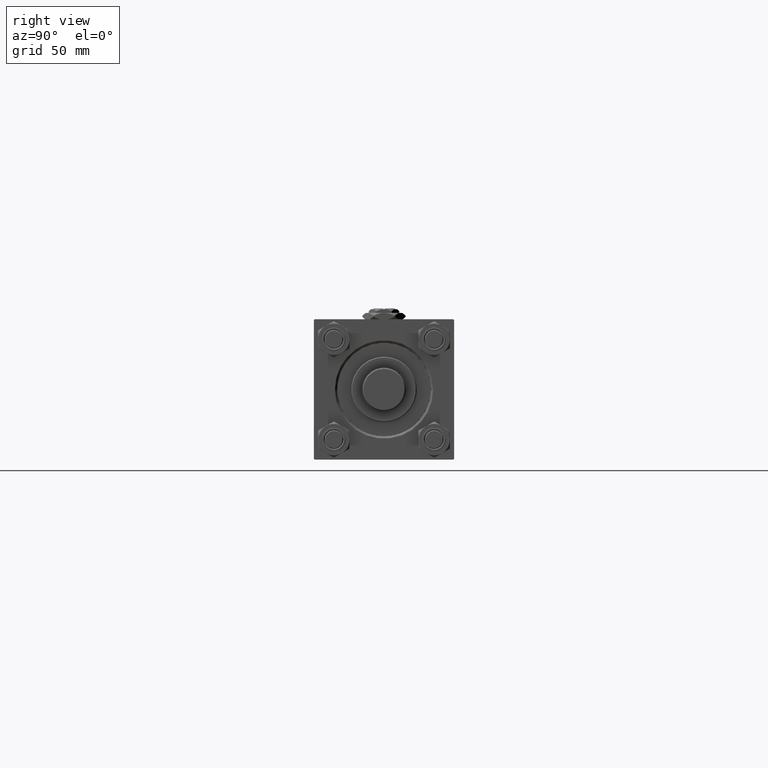
[diagram: clean part render]
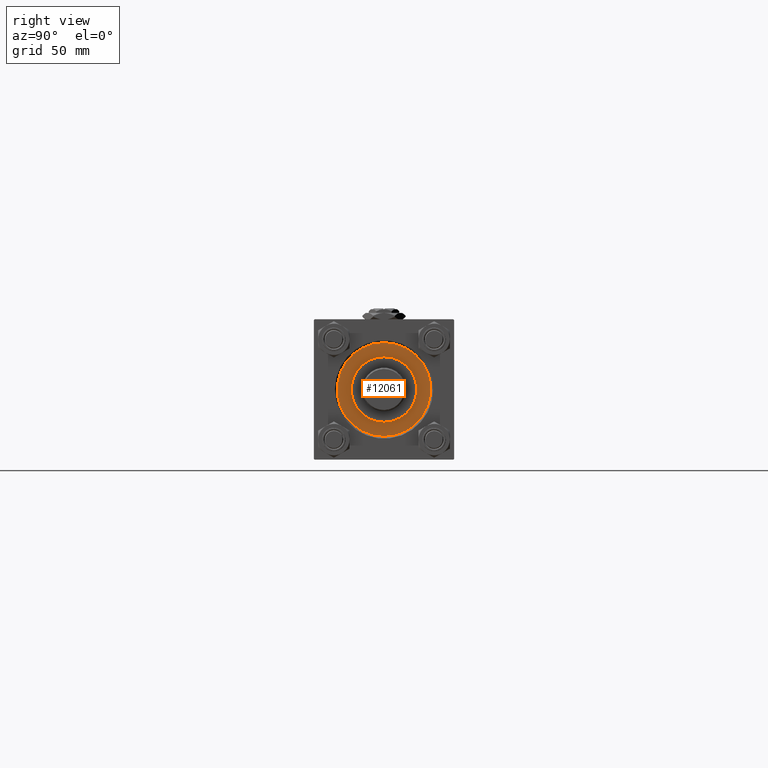
[diagram: same view with one face highlighted and labeled with its STEP entity id]
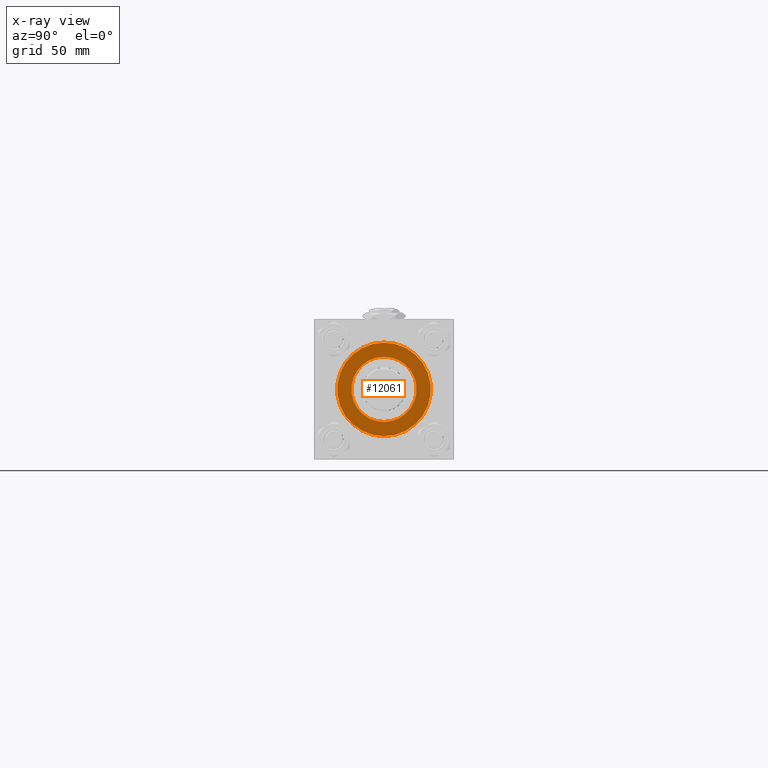
[diagram: x-ray of the same camera — body ghosted, the highlighted face saturated]
A machine part, right view. The second image highlights one B-rep face of the part: STEP entity #12061.
The next image is the same camera in x-ray: the body ghosted, the highlighted face saturated — about 0% of this face is hidden behind the body in this view.
In plain terms, the highlighted planar face has unit normal (1, 0, 0).
Its self-contained STEP definition (entity closure, byte-faithful):
#485 = VERTEX_POINT ( 'NONE', #30337 ) ;
#703 = EDGE_LOOP ( 'NONE', ( #35099, #38675 ) ) ;
#1538 = CARTESIAN_POINT ( 'NONE',  ( 0.000000000000000000, 0.000000000000000000, 28.69999999999999929 ) ) ;
#2022 = DIRECTION ( 'NONE',  ( 1.000000000000000000, 0.000000000000000000, 0.000000000000000000 ) ) ;
#2281 = DIRECTION ( 'NONE',  ( 1.000000000000000000, 0.000000000000000000, 0.000000000000000000 ) ) ;
#3441 = AXIS2_PLACEMENT_3D ( 'NONE', #33066, #48068, #26415 ) ;
#4041 = DIRECTION ( 'NONE',  ( 0.000000000000000000, 0.000000000000000000, 1.000000000000000000 ) ) ;
#4580 = EDGE_CURVE ( 'NONE', #485, #22884, #29225, .T. ) ;
#5862 = CIRCLE ( 'NONE', #31748, 30.00000000000000000 ) ;
#6548 = CARTESIAN_POINT ( 'NONE',  ( 0.000000000000000000, 0.000000000000000000, 28.69999999999999929 ) ) ;
#7603 = CIRCLE ( 'NONE', #34278, 21.00000000000000000 ) ;
#8333 = VERTEX_POINT ( 'NONE', #18948 ) ;
#10335 = EDGE_CURVE ( 'NONE', #8333, #23156, #5862, .T. ) ;
#11167 = CARTESIAN_POINT ( 'NONE',  ( 0.000000000000000000, 0.000000000000000000, 28.69999999999999929 ) ) ;
#12061 = ADVANCED_FACE ( 'NONE', ( #44369, #15117 ), #18076, .T. ) ;
#15117 = FACE_OUTER_BOUND ( 'NONE', #28183, .T. ) ;
#16514 = DIRECTION ( 'NONE',  ( 0.000000000000000000, 0.000000000000000000, 1.000000000000000000 ) ) ;
#18076 = PLANE ( 'NONE',  #3441 ) ;
#18948 = CARTESIAN_POINT ( 'NONE',  ( -30.00000000000000000, 0.000000000000000000, 28.69999999999999929 ) ) ;
#19583 = ORIENTED_EDGE ( 'NONE', *, *, #41976, .T. ) ;
#19594 = EDGE_CURVE ( 'NONE', #22884, #485, #7603, .T. ) ;
#21743 = DIRECTION ( 'NONE',  ( 1.000000000000000000, 0.000000000000000000, 0.000000000000000000 ) ) ;
#22884 = VERTEX_POINT ( 'NONE', #39319 ) ;
#23156 = VERTEX_POINT ( 'NONE', #43671 ) ;
#24492 = AXIS2_PLACEMENT_3D ( 'NONE', #11167, #4041, #21743 ) ;
#26415 = DIRECTION ( 'NONE',  ( 1.000000000000000000, 0.000000000000000000, -0.000000000000000000 ) ) ;
#28087 = CARTESIAN_POINT ( 'NONE',  ( 0.000000000000000000, 0.000000000000000000, 28.69999999999999929 ) ) ;
#28183 = EDGE_LOOP ( 'NONE', ( #29235, #19583 ) ) ;
#29225 = CIRCLE ( 'NONE', #24492, 21.00000000000000000 ) ;
#29235 = ORIENTED_EDGE ( 'NONE', *, *, #10335, .T. ) ;
#29889 = AXIS2_PLACEMENT_3D ( 'NONE', #1538, #16514, #2022 ) ;
#30337 = CARTESIAN_POINT ( 'NONE',  ( 21.00000000000000000, 2.571758278209441661E-15, 28.69999999999999929 ) ) ;
#31748 = AXIS2_PLACEMENT_3D ( 'NONE', #28087, #43065, #2281 ) ;
#33066 = CARTESIAN_POINT ( 'NONE',  ( 0.000000000000000000, 0.000000000000000000, 28.69999999999999929 ) ) ;
#33801 = CIRCLE ( 'NONE', #29889, 30.00000000000000000 ) ;
#34278 = AXIS2_PLACEMENT_3D ( 'NONE', #6548, #36521, #47833 ) ;
#35099 = ORIENTED_EDGE ( 'NONE', *, *, #19594, .F. ) ;
#36521 = DIRECTION ( 'NONE',  ( 0.000000000000000000, 0.000000000000000000, 1.000000000000000000 ) ) ;
#38675 = ORIENTED_EDGE ( 'NONE', *, *, #4580, .F. ) ;
#39319 = CARTESIAN_POINT ( 'NONE',  ( -21.00000000000000000, 0.000000000000000000, 28.69999999999999929 ) ) ;
#41976 = EDGE_CURVE ( 'NONE', #23156, #8333, #33801, .T. ) ;
#43065 = DIRECTION ( 'NONE',  ( 0.000000000000000000, 0.000000000000000000, 1.000000000000000000 ) ) ;
#43671 = CARTESIAN_POINT ( 'NONE',  ( 30.00000000000000000, 3.673940397442059178E-15, 28.69999999999999929 ) ) ;
#44369 = FACE_BOUND ( 'NONE', #703, .T. ) ;
#47833 = DIRECTION ( 'NONE',  ( 1.000000000000000000, 0.000000000000000000, 0.000000000000000000 ) ) ;
#48068 = DIRECTION ( 'NONE',  ( 0.000000000000000000, 0.000000000000000000, 1.000000000000000000 ) ) ;